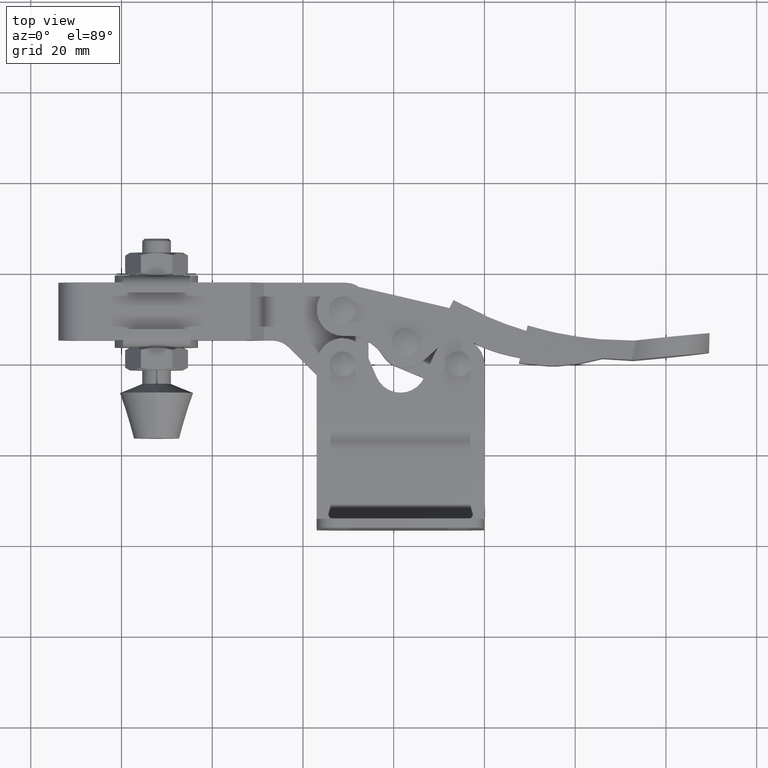
[diagram: clean part render]
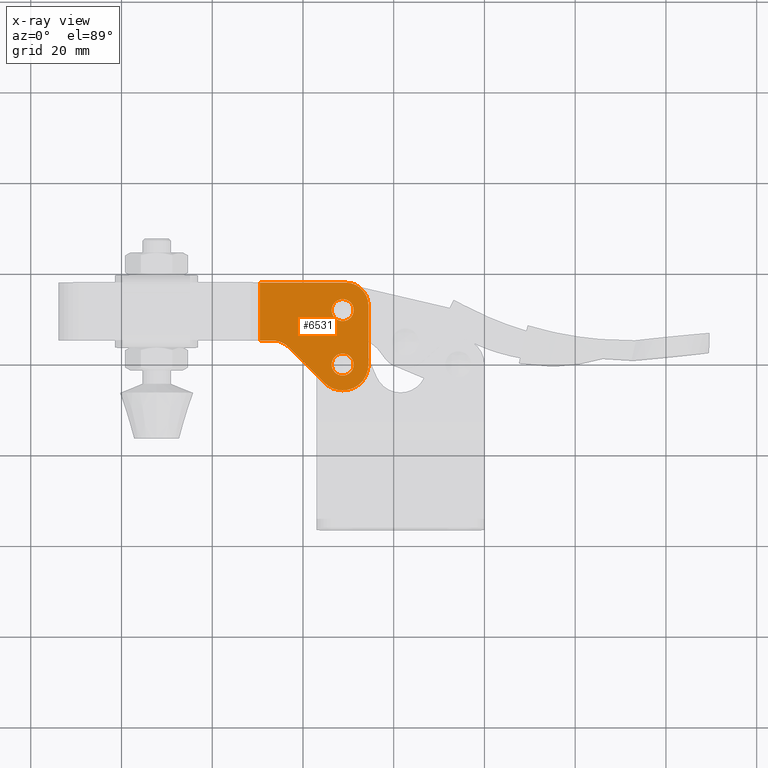
[diagram: x-ray — body ghosted, one internal face saturated and labeled with its STEP entity id]
A machine part, top view, then the same camera in x-ray: the body is ghosted and one INTERNAL B-rep face — a face not visible from any outside direction — is saturated and labeled: STEP entity #6531.
In plain terms, the highlighted planar face has unit normal (-0, 0, -1).
Its self-contained STEP definition (entity closure, byte-faithful):
#334 = DIRECTION ( 'NONE',  ( 2.356930568284093500E-017, -1.201711089163625900E-016, 1.000000000000000000 ) ) ;
#394 = CARTESIAN_POINT ( 'NONE',  ( -33.67499999999972000, 31.75000000000009600, -2.000049999999548700 ) ) ;
#460 = VERTEX_POINT ( 'NONE', #1236 ) ;
#505 = ORIENTED_EDGE ( 'NONE', *, *, #4491, .T. ) ;
#532 = VERTEX_POINT ( 'NONE', #3398 ) ;
#591 = DIRECTION ( 'NONE',  ( 1.000000000000000000, 6.224333782242064800E-019, -2.356930568284092300E-017 ) ) ;
#794 = CARTESIAN_POINT ( 'NONE',  ( -93.91542650810583800, 25.08000000000017900, -2.000049999999548200 ) ) ;
#811 = AXIS2_PLACEMENT_3D ( 'NONE', #9053, #4637, #2554 ) ;
#839 = CIRCLE ( 'NONE', #3070, 5.699999999999923800 ) ;
#922 = DIRECTION ( 'NONE',  ( -4.869399230812155100E-015, 1.000000000000000000, 1.521687259628798500E-016 ) ) ;
#1127 = LINE ( 'NONE', #6020, #1255 ) ;
#1191 = CARTESIAN_POINT ( 'NONE',  ( -49.50323088947264700, 12.77999999999998500, -2.000049999999550900 ) ) ;
#1236 = CARTESIAN_POINT ( 'NONE',  ( -33.67499999999966300, 19.75000000000011000, -2.000049999999550500 ) ) ;
#1241 = AXIS2_PLACEMENT_3D ( 'NONE', #4803, #334, #7190 ) ;
#1255 = VECTOR ( 'NONE', #3828, 1000.000000000000000 ) ;
#1469 = LINE ( 'NONE', #1191, #2211 ) ;
#1488 = DIRECTION ( 'NONE',  ( 4.704624276957724300E-015, -1.000000000000000000, -1.201711089163626900E-016 ) ) ;
#1496 = ORIENTED_EDGE ( 'NONE', *, *, #7069, .T. ) ;
#1542 = DIRECTION ( 'NONE',  ( -4.292099322004477200E-015, 1.000000000000000000, 1.788374717501865500E-016 ) ) ;
#1560 = CARTESIAN_POINT ( 'NONE',  ( -25.54999999999968800, 32.78000000000010100, -2.000049999999548700 ) ) ;
#1568 = VERTEX_POINT ( 'NONE', #394 ) ;
#1776 = FACE_BOUND ( 'NONE', #7372, .T. ) ;
#1777 = CARTESIAN_POINT ( 'NONE',  ( -28.82499999999972200, 31.75000000000009600, -2.000049999999548700 ) ) ;
#1783 = DIRECTION ( 'NONE',  ( 2.356930568284093500E-017, -1.201711089163625900E-016, 1.000000000000000000 ) ) ;
#1787 = VERTEX_POINT ( 'NONE', #8593 ) ;
#1880 = VERTEX_POINT ( 'NONE', #9799 ) ;
#1909 = CARTESIAN_POINT ( 'NONE',  ( -46.71208511739178000, 20.08000000000017200, -2.000049999999550000 ) ) ;
#1926 = AXIS2_PLACEMENT_3D ( 'NONE', #5808, #4141, #3134 ) ;
#2211 = VECTOR ( 'NONE', #1488, 1000.000000000000000 ) ;
#2240 = DIRECTION ( 'NONE',  ( -4.292099322004470900E-015, 1.000000000000000000, 1.788374717501862800E-016 ) ) ;
#2280 = CIRCLE ( 'NONE', #5973, 2.424999999999996700 ) ;
#2312 = FACE_BOUND ( 'NONE', #3803, .T. ) ;
#2315 = EDGE_CURVE ( 'NONE', #5588, #532, #3012, .T. ) ;
#2373 = DIRECTION ( 'NONE',  ( 4.704624276957724300E-015, -1.000000000000000000, -1.201711089163626900E-016 ) ) ;
#2477 = CARTESIAN_POINT ( 'NONE',  ( -46.71208511739180800, 25.08000000000025400, -2.000049999999549100 ) ) ;
#2554 = DIRECTION ( 'NONE',  ( -4.704624276957724300E-015, 1.000000000000000000, 1.201711089163626900E-016 ) ) ;
#2603 = EDGE_CURVE ( 'NONE', #4647, #6912, #1469, .T. ) ;
#2838 = LINE ( 'NONE', #3517, #5666 ) ;
#2912 = VERTEX_POINT ( 'NONE', #1777 ) ;
#2995 = CIRCLE ( 'NONE', #1241, 4.999999999999948500 ) ;
#3012 = CIRCLE ( 'NONE', #8636, 5.000000000000080800 ) ;
#3063 = CARTESIAN_POINT ( 'NONE',  ( -31.24999999999966600, 19.75000000000011000, -2.000049999999550500 ) ) ;
#3070 = AXIS2_PLACEMENT_3D ( 'NONE', #5956, #6056, #922 ) ;
#3090 = CIRCLE ( 'NONE', #8893, 2.425000000000000300 ) ;
#3134 = DIRECTION ( 'NONE',  ( -4.292099322004477200E-015, 1.000000000000000000, 1.788374717501865500E-016 ) ) ;
#3214 = AXIS2_PLACEMENT_3D ( 'NONE', #7720, #3680, #2240 ) ;
#3239 = EDGE_CURVE ( 'NONE', #5299, #1787, #5182, .T. ) ;
#3394 = LINE ( 'NONE', #794, #3405 ) ;
#3398 = CARTESIAN_POINT ( 'NONE',  ( -43.17655121145903500, 23.61553390593312700, -2.000049999999549600 ) ) ;
#3405 = VECTOR ( 'NONE', #591, 1000.000000000000000 ) ;
#3489 = ORIENTED_EDGE ( 'NONE', *, *, #3937, .T. ) ;
#3501 = EDGE_CURVE ( 'NONE', #1568, #2912, #4572, .T. ) ;
#3517 = CARTESIAN_POINT ( 'NONE',  ( -25.54999999999948200, 12.78000000000009700, -2.000049999999551400 ) ) ;
#3590 = FACE_OUTER_BOUND ( 'NONE', #7388, .T. ) ;
#3680 = DIRECTION ( 'NONE',  ( 2.356930568284093500E-017, -1.201711089163625900E-016, 1.000000000000000000 ) ) ;
#3702 = ORIENTED_EDGE ( 'NONE', *, *, #9158, .F. ) ;
#3803 = EDGE_LOOP ( 'NONE', ( #8863, #9442 ) ) ;
#3828 = DIRECTION ( 'NONE',  ( -1.000000000000000000, -4.718502064765538800E-015, 2.356930568284035900E-017 ) ) ;
#3937 = EDGE_CURVE ( 'NONE', #532, #5299, #9906, .T. ) ;
#4141 = DIRECTION ( 'NONE',  ( 2.356930568284093500E-017, -1.201711089163625900E-016, 1.000000000000000000 ) ) ;
#4247 = CARTESIAN_POINT ( 'NONE',  ( -30.54999999999960600, 37.78000000000008600, -2.000049999999548200 ) ) ;
#4491 = EDGE_CURVE ( 'NONE', #7966, #4647, #1127, .T. ) ;
#4572 = CIRCLE ( 'NONE', #1926, 2.424999999999996700 ) ;
#4637 = DIRECTION ( 'NONE',  ( -2.356930568284093800E-017, 1.201711089163625900E-016, -1.000000000000000000 ) ) ;
#4647 = VERTEX_POINT ( 'NONE', #8315 ) ;
#4657 = PLANE ( 'NONE',  #811 ) ;
#4782 = CARTESIAN_POINT ( 'NONE',  ( -31.24999999999972300, 31.75000000000009600, -2.000049999999548700 ) ) ;
#4803 = CARTESIAN_POINT ( 'NONE',  ( -30.54999999999958500, 32.78000000000007200, -2.000049999999548700 ) ) ;
#4959 = CARTESIAN_POINT ( 'NONE',  ( -35.28050865276310300, 15.71949134723701600, -2.000049999999550900 ) ) ;
#5016 = VERTEX_POINT ( 'NONE', #1560 ) ;
#5108 = DIRECTION ( 'NONE',  ( -4.292099322004470900E-015, 1.000000000000000000, 1.788374717501862800E-016 ) ) ;
#5182 = CIRCLE ( 'NONE', #5481, 5.699999999999923800 ) ;
#5299 = VERTEX_POINT ( 'NONE', #4959 ) ;
#5448 = EDGE_CURVE ( 'NONE', #5568, #460, #9894, .T. ) ;
#5481 = AXIS2_PLACEMENT_3D ( 'NONE', #3063, #7006, #8629 ) ;
#5568 = VERTEX_POINT ( 'NONE', #9476 ) ;
#5588 = VERTEX_POINT ( 'NONE', #2477 ) ;
#5666 = VECTOR ( 'NONE', #2373, 1000.000000000000000 ) ;
#5808 = CARTESIAN_POINT ( 'NONE',  ( -31.24999999999972300, 31.75000000000009600, -2.000049999999548700 ) ) ;
#5810 = EDGE_CURVE ( 'NONE', #5016, #1880, #2838, .T. ) ;
#5956 = CARTESIAN_POINT ( 'NONE',  ( -31.24999999999966600, 19.75000000000011000, -2.000049999999550500 ) ) ;
#5973 = AXIS2_PLACEMENT_3D ( 'NONE', #4782, #1783, #1542 ) ;
#6020 = CARTESIAN_POINT ( 'NONE',  ( -20.39647417840340200, 37.78000000000013600, -2.000049999999548200 ) ) ;
#6056 = DIRECTION ( 'NONE',  ( 2.356930568284093500E-017, -1.201711089163625900E-016, 1.000000000000000000 ) ) ;
#6176 = DIRECTION ( 'NONE',  ( -4.163336342344270000E-015, 1.000000000000000000, 8.673617379883895000E-017 ) ) ;
#6424 = EDGE_CURVE ( 'NONE', #460, #5568, #3090, .T. ) ;
#6479 = DIRECTION ( 'NONE',  ( 2.356930568284093500E-017, -1.201711089163625900E-016, 1.000000000000000000 ) ) ;
#6531 = ADVANCED_FACE ( 'NONE', ( #2312, #1776, #3590 ), #4657, .F. ) ;
#6784 = ORIENTED_EDGE ( 'NONE', *, *, #5810, .F. ) ;
#6870 = DIRECTION ( 'NONE',  ( 0.7071067811865465700, -0.7071067811865484600, -1.016398218936627300E-016 ) ) ;
#6912 = VERTEX_POINT ( 'NONE', #7804 ) ;
#7006 = DIRECTION ( 'NONE',  ( 2.356930568284093500E-017, -1.201711089163625900E-016, 1.000000000000000000 ) ) ;
#7069 = EDGE_CURVE ( 'NONE', #1787, #1880, #839, .T. ) ;
#7190 = DIRECTION ( 'NONE',  ( -2.775557561562920100E-015, 1.000000000000000000, 8.673617379884125500E-017 ) ) ;
#7372 = EDGE_LOOP ( 'NONE', ( #3702, #8464 ) ) ;
#7388 = EDGE_LOOP ( 'NONE', ( #7420, #7566, #9209, #3489, #8651, #1496, #6784, #9135, #505 ) ) ;
#7420 = ORIENTED_EDGE ( 'NONE', *, *, #2603, .T. ) ;
#7566 = ORIENTED_EDGE ( 'NONE', *, *, #8938, .T. ) ;
#7703 = VECTOR ( 'NONE', #6870, 1000.000000000000100 ) ;
#7720 = CARTESIAN_POINT ( 'NONE',  ( -31.24999999999966600, 19.75000000000011000, -2.000049999999550500 ) ) ;
#7804 = CARTESIAN_POINT ( 'NONE',  ( -49.50323088947269700, 25.08000000000017900, -2.000049999999549100 ) ) ;
#7966 = VERTEX_POINT ( 'NONE', #4247 ) ;
#8097 = CARTESIAN_POINT ( 'NONE',  ( -31.24999999999966600, 19.75000000000011000, -2.000049999999550500 ) ) ;
#8315 = CARTESIAN_POINT ( 'NONE',  ( -49.50323088947275400, 37.77999999999999400, -2.000049999999544700 ) ) ;
#8341 = DIRECTION ( 'NONE',  ( -2.356930568284093500E-017, 1.201711089163625900E-016, -1.000000000000000000 ) ) ;
#8464 = ORIENTED_EDGE ( 'NONE', *, *, #3501, .F. ) ;
#8584 = CARTESIAN_POINT ( 'NONE',  ( -35.28050865276301800, 15.71949134723709600, -2.000049999999550900 ) ) ;
#8593 = CARTESIAN_POINT ( 'NONE',  ( -31.24999999999963800, 14.05000000000018700, -2.000049999999551400 ) ) ;
#8629 = DIRECTION ( 'NONE',  ( -3.043374519257597000E-015, 1.000000000000000000, 1.521687259628798500E-016 ) ) ;
#8636 = AXIS2_PLACEMENT_3D ( 'NONE', #1909, #8341, #6176 ) ;
#8651 = ORIENTED_EDGE ( 'NONE', *, *, #3239, .T. ) ;
#8863 = ORIENTED_EDGE ( 'NONE', *, *, #5448, .F. ) ;
#8893 = AXIS2_PLACEMENT_3D ( 'NONE', #8097, #6479, #5108 ) ;
#8938 = EDGE_CURVE ( 'NONE', #6912, #5588, #3394, .T. ) ;
#9053 = CARTESIAN_POINT ( 'NONE',  ( -20.39647417840328800, 14.05000000000023500, -2.000049999999551400 ) ) ;
#9135 = ORIENTED_EDGE ( 'NONE', *, *, #9728, .T. ) ;
#9158 = EDGE_CURVE ( 'NONE', #2912, #1568, #2280, .T. ) ;
#9209 = ORIENTED_EDGE ( 'NONE', *, *, #2315, .T. ) ;
#9442 = ORIENTED_EDGE ( 'NONE', *, *, #6424, .F. ) ;
#9476 = CARTESIAN_POINT ( 'NONE',  ( -28.82499999999966500, 19.75000000000011000, -2.000049999999550500 ) ) ;
#9728 = EDGE_CURVE ( 'NONE', #5016, #7966, #2995, .T. ) ;
#9799 = CARTESIAN_POINT ( 'NONE',  ( -25.54999999999951800, 19.75000000000013900, -2.000049999999550500 ) ) ;
#9894 = CIRCLE ( 'NONE', #3214, 2.425000000000000300 ) ;
#9906 = LINE ( 'NONE', #8584, #7703 ) ;